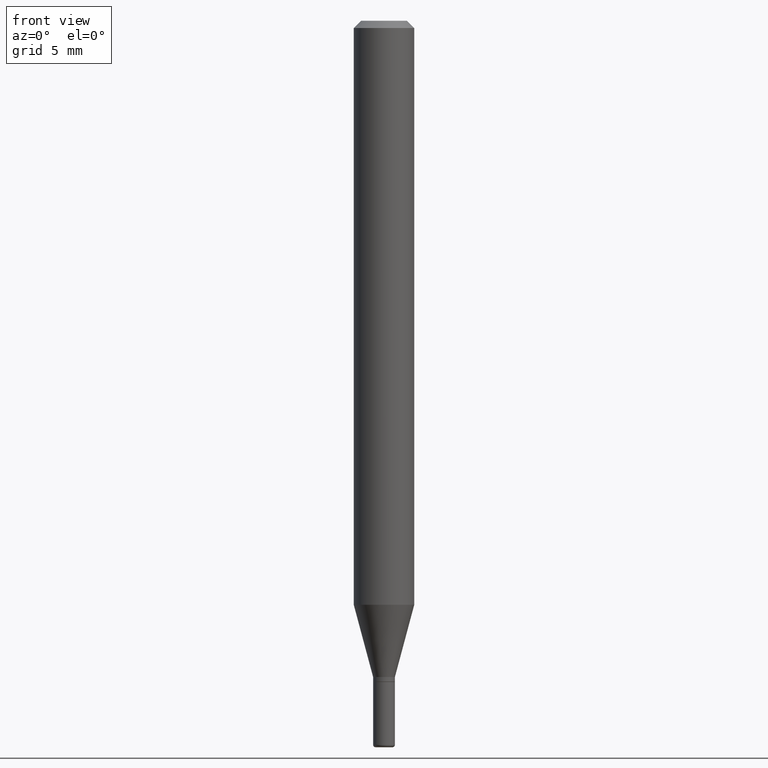
[diagram: clean part render]
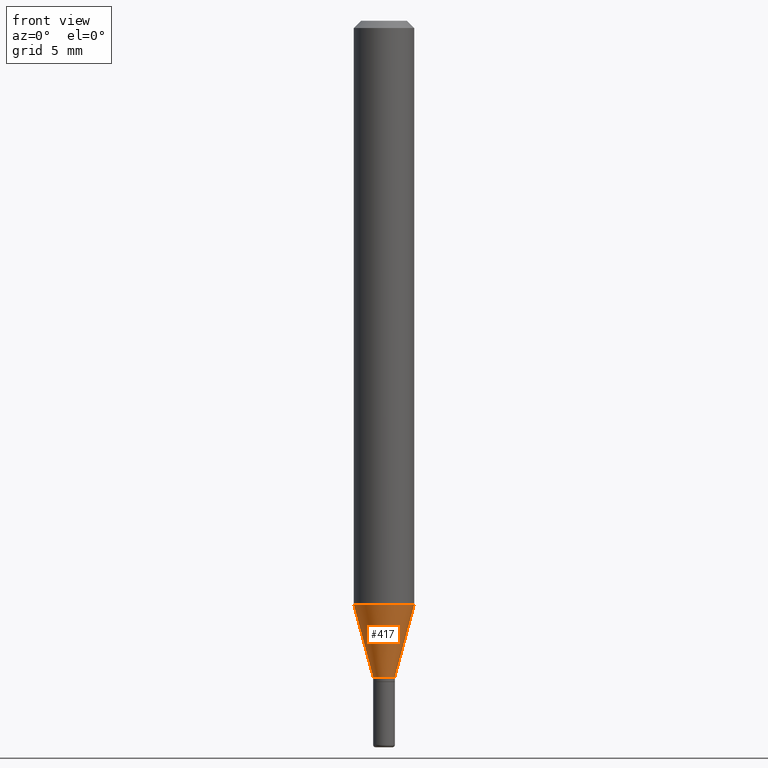
[diagram: same view with one face highlighted and labeled with its STEP entity id]
A machine part, front view. The second image highlights one B-rep face of the part: STEP entity #417.
In plain terms, the highlighted conical surface has half-angle 15 deg.
Its self-contained STEP definition (entity closure, byte-faithful):
#26 = ORIENTED_EDGE ( 'NONE', *, *, #143, .T. ) ;
#32 = ORIENTED_EDGE ( 'NONE', *, *, #499, .F. ) ;
#39 = DIRECTION ( 'NONE',  ( 0.2588190451025206840, 1.565188264969626504E-15, 0.9659258262890682012 ) ) ;
#46 = AXIS2_PLACEMENT_3D ( 'NONE', #123, #326, #253 ) ;
#79 = CONICAL_SURFACE ( 'NONE', #146, 0.02250000000000007896, 0.2617993877991494078 ) ;
#86 = DIRECTION ( 'NONE',  ( -2.445468806185136597E-29, 3.491481338843145583E-15, 1.000000000000000000 ) ) ;
#91 = VERTEX_POINT ( 'NONE', #310 ) ;
#92 = FACE_OUTER_BOUND ( 'NONE', #337, .T. ) ;
#118 = VECTOR ( 'NONE', #39, 39.37007874015748854 ) ;
#123 = CARTESIAN_POINT ( 'NONE',  ( 2.948545679060552191E-29, -4.209741784122815192E-15, -1.205717967697245596 ) ) ;
#126 = CARTESIAN_POINT ( 'NONE',  ( -0.02250000000000007896, -4.168368836429596353E-15, -1.355000000000000426 ) ) ;
#130 = DIRECTION ( 'NONE',  ( 1.000000000000000000, -6.982962677686286432E-15, 0.000000000000000000 ) ) ;
#143 = EDGE_CURVE ( 'NONE', #91, #249, #435, .T. ) ;
#146 = AXIS2_PLACEMENT_3D ( 'NONE', #263, #86, #489 ) ;
#217 = VECTOR ( 'NONE', #381, 39.37007874015748854 ) ;
#230 = ORIENTED_EDGE ( 'NONE', *, *, #269, .F. ) ;
#249 = VERTEX_POINT ( 'NONE', #324 ) ;
#253 = DIRECTION ( 'NONE',  ( 1.000000000000000000, -6.982962677686270655E-15, 0.000000000000000000 ) ) ;
#263 = CARTESIAN_POINT ( 'NONE',  ( 3.313610232380861411E-29, -4.730957214132463998E-15, -1.355000000000000426 ) ) ;
#269 = EDGE_CURVE ( 'NONE', #507, #249, #333, .T. ) ;
#310 = CARTESIAN_POINT ( 'NONE',  ( 0.02250000000000007896, -4.888073874380405630E-15, -1.355000000000000426 ) ) ;
#324 = CARTESIAN_POINT ( 'NONE',  ( 0.06250000000000000000, -4.646176951478207651E-15, -1.205717967697245596 ) ) ;
#326 = DIRECTION ( 'NONE',  ( -2.445468806185136597E-29, 3.491481338843145583E-15, 1.000000000000000000 ) ) ;
#333 = CIRCLE ( 'NONE', #46, 0.06250000000000000000 ) ;
#337 = EDGE_LOOP ( 'NONE', ( #32, #451, #26, #230 ) ) ;
#338 = LINE ( 'NONE', #502, #217 ) ;
#381 = DIRECTION ( 'NONE',  ( -0.2588190451025206840, 5.211531920934545520E-15, 0.9659258262890682012 ) ) ;
#406 = EDGE_CURVE ( 'NONE', #422, #91, #423, .T. ) ;
#417 = ADVANCED_FACE ( 'NONE', ( #92 ), #79, .T. ) ;
#422 = VERTEX_POINT ( 'NONE', #126 ) ;
#423 = CIRCLE ( 'NONE', #492, 0.02250000000000007896 ) ;
#435 = LINE ( 'NONE', #443, #118 ) ;
#443 = CARTESIAN_POINT ( 'NONE',  ( 0.02250000000000007896, -4.888073874380405630E-15, -1.355000000000000426 ) ) ;
#451 = ORIENTED_EDGE ( 'NONE', *, *, #406, .T. ) ;
#452 = DIRECTION ( 'NONE',  ( -2.445468806185136597E-29, 3.491481338843145583E-15, 1.000000000000000000 ) ) ;
#489 = DIRECTION ( 'NONE',  ( 1.000000000000000000, -6.982962677686286432E-15, 0.000000000000000000 ) ) ;
#491 = CARTESIAN_POINT ( 'NONE',  ( 3.313610232380861411E-29, -4.730957214132463998E-15, -1.355000000000000426 ) ) ;
#492 = AXIS2_PLACEMENT_3D ( 'NONE', #491, #452, #130 ) ;
#498 = CARTESIAN_POINT ( 'NONE',  ( -0.06250000000000000000, -3.765652574272752576E-15, -1.205717967697245596 ) ) ;
#499 = EDGE_CURVE ( 'NONE', #422, #507, #338, .T. ) ;
#502 = CARTESIAN_POINT ( 'NONE',  ( -0.02250000000000007896, -4.571085098586440920E-15, -1.355000000000000426 ) ) ;
#507 = VERTEX_POINT ( 'NONE', #498 ) ;